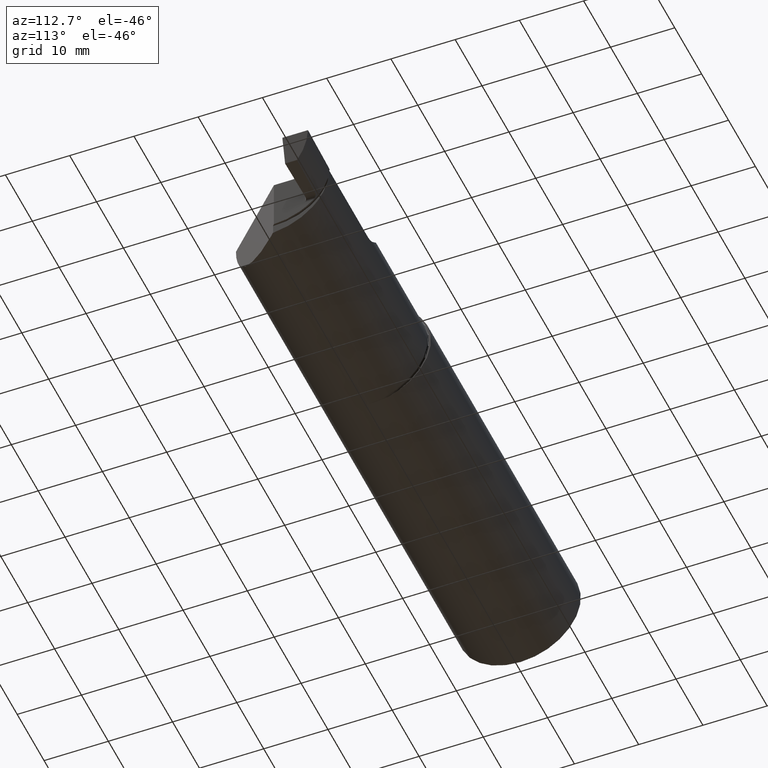
[diagram: clean part render]
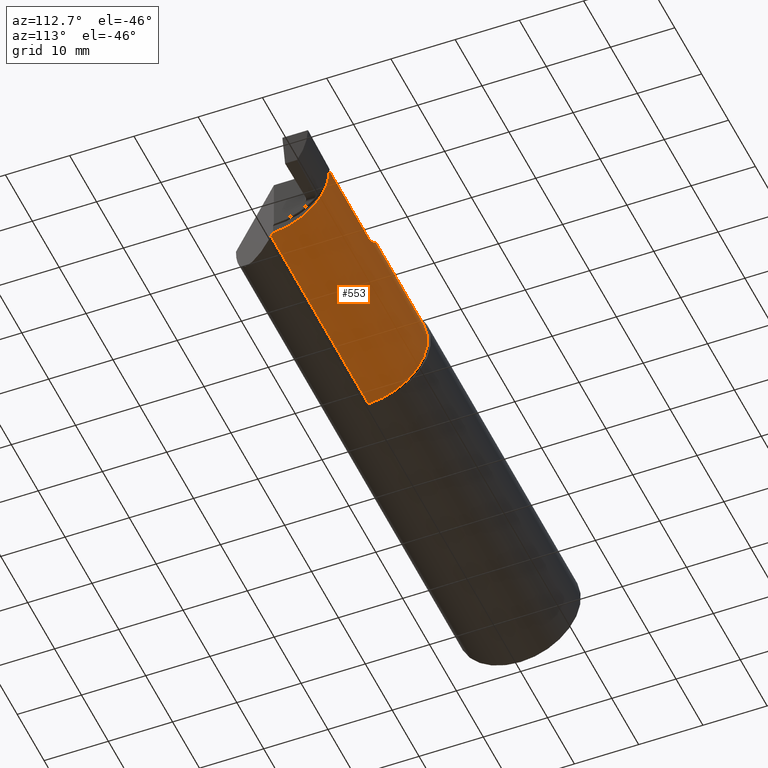
[diagram: same view with one face highlighted and labeled with its STEP entity id]
A machine part, auxiliary view. The second image highlights one B-rep face of the part: STEP entity #553.
In plain terms, the highlighted cylindrical surface (partial cylindrical patch) has radius 9.525 mm, axis along (-1, -0, -0).
Its self-contained STEP definition (entity closure, byte-faithful):
#20 = EDGE_CURVE ( 'NONE', #408, #60, #1020, .T. ) ;
#26 = CARTESIAN_POINT ( 'NONE',  ( 2.689999999999997282, 0.08836216410823956313, 0.3598500000000000587 ) ) ;
#45 = CARTESIAN_POINT ( 'NONE',  ( 3.069098199700243779, 0.3578309987608568332, 0.004030619021138301221 ) ) ;
#51 = CARTESIAN_POINT ( 'NONE',  ( 3.013238347648311333, 0.3560577416285020114, 0.03661165235168205301 ) ) ;
#54 = DIRECTION ( 'NONE',  ( 1.000000000000000000, 0.000000000000000000, 0.000000000000000000 ) ) ;
#60 = VERTEX_POINT ( 'NONE', #568 ) ;
#67 = DIRECTION ( 'NONE',  ( -1.000000000000000000, -0.000000000000000000, -0.000000000000000000 ) ) ;
#73 = EDGE_CURVE ( 'NONE', #485, #902, #1024, .T. ) ;
#85 = VERTEX_POINT ( 'NONE', #395 ) ;
#87 = CARTESIAN_POINT ( 'NONE',  ( 3.644553700960193598, -0.005296299039805382053, -0.3748125821213424969 ) ) ;
#95 = EDGE_CURVE ( 'NONE', #485, #60, #1035, .T. ) ;
#103 = EDGE_CURVE ( 'NONE', #144, #85, #871, .T. ) ;
#105 = CARTESIAN_POINT ( 'NONE',  ( 2.217999999999999527, -0.005296299040551805809, -0.3748125821213491582 ) ) ;
#111 = CARTESIAN_POINT ( 'NONE',  ( 3.661999999999995925, 0.3493624075411467800, -0.07932904144530507351 ) ) ;
#122 = CARTESIAN_POINT ( 'NONE',  ( 3.660842389325723367, 0.3236224128022969770, -0.1662253948398291215 ) ) ;
#124 =( BOUNDED_CURVE ( )  B_SPLINE_CURVE ( 3, ( #980, #122, #259, #592 ),
 .UNSPECIFIED., .F., .F. ) 
 B_SPLINE_CURVE_WITH_KNOTS ( ( 4, 4 ),
 ( 0.3056808995292194520, 0.7497246326158212293 ),
 .UNSPECIFIED. ) 
 CURVE ( )  GEOMETRIC_REPRESENTATION_ITEM ( )  RATIONAL_B_SPLINE_CURVE ( ( 1.000000000000000000, 0.9836361491673499824, 0.9836361491673499824, 1.000000000000000000 ) ) 
 REPRESENTATION_ITEM ( '' )  );
#137 = CARTESIAN_POINT ( 'NONE',  ( 2.209999999999999520, 0.3578492383597801640, 0.000000000000000000 ) ) ;
#144 = VERTEX_POINT ( 'NONE', #111 ) ;
#166 = ORIENTED_EDGE ( 'NONE', *, *, #173, .T. ) ;
#167 = CIRCLE ( 'NONE', #724, 0.3749999999999996669 ) ;
#173 = EDGE_CURVE ( 'NONE', #85, #341, #124, .T. ) ;
#177 = CARTESIAN_POINT ( 'NONE',  ( 3.661374699452105030, 0.3481424780645392958, -0.08496531550717491277 ) ) ;
#186 = VECTOR ( 'NONE', #54, 39.37007874015748143 ) ;
#198 = DIRECTION ( 'NONE',  ( 0.000000000000000000, 0.000000000000000000, 1.000000000000000000 ) ) ;
#205 = CARTESIAN_POINT ( 'NONE',  ( 3.661999999999999922, -0.01715076164021963126, 0.000000000000000000 ) ) ;
#242 = CARTESIAN_POINT ( 'NONE',  ( 3.660518016757759785, 0.3422057047749796910, -0.1073377072877745170 ) ) ;
#245 = ORIENTED_EDGE ( 'NONE', *, *, #95, .T. ) ;
#246 = CARTESIAN_POINT ( 'NONE',  ( 3.013238347648311333, 0.3560577416285020114, 0.03661165235168205301 ) ) ;
#253 = EDGE_CURVE ( 'NONE', #427, #144, #560, .T. ) ;
#254 = DIRECTION ( 'NONE',  ( -1.000000000000000000, -0.000000000000000000, -0.000000000000000000 ) ) ;
#259 = CARTESIAN_POINT ( 'NONE',  ( 3.661334305854107907, 0.2954405337655734987, -0.2145784713008627997 ) ) ;
#277 = CARTESIAN_POINT ( 'NONE',  ( 3.085114159819533963, 0.3578517493328192689, 0.0008266118192357160398 ) ) ;
#304 = CARTESIAN_POINT ( 'NONE',  ( 3.660548399360922467, 0.3404650866055265457, -0.1128534673081659917 ) ) ;
#309 = CARTESIAN_POINT ( 'NONE',  ( 3.661999999999995925, 0.3493624075411467800, -0.07932904144530507351 ) ) ;
#320 = ORIENTED_EDGE ( 'NONE', *, *, #73, .F. ) ;
#327 = CARTESIAN_POINT ( 'NONE',  ( 3.013238347648311333, 0.3560577416285020114, 0.03661165235168205301 ) ) ;
#334 = AXIS2_PLACEMENT_3D ( 'NONE', #747, #254, #650 ) ;
#337 = VECTOR ( 'NONE', #952, 39.37007874015748143 ) ;
#341 = VERTEX_POINT ( 'NONE', #550 ) ;
#353 = ORIENTED_EDGE ( 'NONE', *, *, #507, .T. ) ;
#369 = CARTESIAN_POINT ( 'NONE',  ( 3.061312743841987594, 0.3578077948251029428, 0.006396521326471136214 ) ) ;
#378 = EDGE_CURVE ( 'NONE', #949, #902, #788, .T. ) ;
#384 = AXIS2_PLACEMENT_3D ( 'NONE', #773, #680, #929 ) ;
#389 = CARTESIAN_POINT ( 'NONE',  ( 3.661040727835074282, 0.3467859373946659551, -0.09060102688412932648 ) ) ;
#395 = CARTESIAN_POINT ( 'NONE',  ( 3.660548399360922467, 0.3404650866055265457, -0.1128534673081659917 ) ) ;
#403 = EDGE_LOOP ( 'NONE', ( #245, #519, #725, #630, #647, #734, #166, #353, #711, #889, #320 ) ) ;
#408 = VERTEX_POINT ( 'NONE', #246 ) ;
#427 = VERTEX_POINT ( 'NONE', #575 ) ;
#434 = CARTESIAN_POINT ( 'NONE',  ( 3.025361822505243659, 0.3569999263830916925, 0.02562779885089322071 ) ) ;
#465 = CARTESIAN_POINT ( 'NONE',  ( 3.661999999999999922, 0.01214999999999992822, -0.3738535346459931907 ) ) ;
#473 = FACE_OUTER_BOUND ( 'NONE', #403, .T. ) ;
#485 = VERTEX_POINT ( 'NONE', #679 ) ;
#507 = EDGE_CURVE ( 'NONE', #341, #574, #167, .T. ) ;
#517 = DIRECTION ( 'NONE',  ( -1.000000000000000000, -0.000000000000000000, -0.000000000000000000 ) ) ;
#519 = ORIENTED_EDGE ( 'NONE', *, *, #20, .F. ) ;
#533 = EDGE_CURVE ( 'NONE', #555, #427, #948, .T. ) ;
#550 = CARTESIAN_POINT ( 'NONE',  ( 3.661999999999999922, 0.2573029416895778465, -0.2555389690997428853 ) ) ;
#553 = ADVANCED_FACE ( 'NONE', ( #473 ), #715, .T. ) ;
#555 = VERTEX_POINT ( 'NONE', #887 ) ;
#560 = CIRCLE ( 'NONE', #696, 0.3749999999999996669 ) ;
#568 = CARTESIAN_POINT ( 'NONE',  ( 2.689999999999997282, 0.08836216410823956313, 0.3598500000000000587 ) ) ;
#574 = VERTEX_POINT ( 'NONE', #894 ) ;
#575 = CARTESIAN_POINT ( 'NONE',  ( 3.661999999999999922, 0.3578492383597800530, 0.000000000000000000 ) ) ;
#585 = CARTESIAN_POINT ( 'NONE',  ( 2.856066336462941724, 0.3406392102109843112, 0.1937836635370545346 ) ) ;
#592 = CARTESIAN_POINT ( 'NONE',  ( 3.661999999999999922, 0.2573029416895778465, -0.2555389690997428853 ) ) ;
#603 = CARTESIAN_POINT ( 'NONE',  ( 3.093374821991286439, 0.3578492383597802196, -5.002163074336419804E-18 ) ) ;
#630 = ORIENTED_EDGE ( 'NONE', *, *, #533, .T. ) ;
#647 = ORIENTED_EDGE ( 'NONE', *, *, #253, .T. ) ;
#650 = DIRECTION ( 'NONE',  ( 0.000000000000000000, 0.000000000000000000, 1.000000000000000000 ) ) ;
#652 = CARTESIAN_POINT ( 'NONE',  ( 2.734435425775913586, 0.2399084116607304029, 0.3154145742240833661 ) ) ;
#679 = CARTESIAN_POINT ( 'NONE',  ( 2.217999999999999527, 0.08836216410824010437, 0.3598500000000000587 ) ) ;
#680 = DIRECTION ( 'NONE',  ( -1.000000000000000000, -0.000000000000000000, -0.000000000000000000 ) ) ;
#681 = CARTESIAN_POINT ( 'NONE',  ( 3.038883473395751267, 0.3575098277672587033, 0.01658204351399127086 ) ) ;
#684 = DIRECTION ( 'NONE',  ( -1.000000000000000000, -0.000000000000000000, -0.000000000000000000 ) ) ;
#690 = CARTESIAN_POINT ( 'NONE',  ( 3.019060571484214250, 0.3566289001983811158, 0.03078942851578016573 ) ) ;
#696 = AXIS2_PLACEMENT_3D ( 'NONE', #205, #517, #831 ) ;
#700 =( BOUNDED_CURVE ( )  B_SPLINE_CURVE ( 3, ( #465, #799, #719, #87 ),
 .UNSPECIFIED., .F., .T. ) 
 B_SPLINE_CURVE_WITH_KNOTS ( ( 4, 4 ),
 ( 4.634173892296693964, 4.680771812721409297 ),
 .UNSPECIFIED. ) 
 CURVE ( )  GEOMETRIC_REPRESENTATION_ITEM ( )  RATIONAL_B_SPLINE_CURVE ( ( 1.000000000000000000, 0.9998190610029968894, 0.9998190610029968894, 1.000000000000000000 ) ) 
 REPRESENTATION_ITEM ( '' )  );
#711 = ORIENTED_EDGE ( 'NONE', *, *, #744, .T. ) ;
#714 = CARTESIAN_POINT ( 'NONE',  ( 3.660602707718964677, 0.3438180439414914580, -0.1017840280878117704 ) ) ;
#715 = CYLINDRICAL_SURFACE ( 'NONE', #334, 0.3749999999999998335 ) ;
#719 = CARTESIAN_POINT ( 'NONE',  ( 3.650376056702548944, 0.0005260567025488105831, -0.3746284343587198418 ) ) ;
#724 = AXIS2_PLACEMENT_3D ( 'NONE', #916, #684, #198 ) ;
#725 = ORIENTED_EDGE ( 'NONE', *, *, #1009, .T. ) ;
#734 = ORIENTED_EDGE ( 'NONE', *, *, #103, .T. ) ;
#744 = EDGE_CURVE ( 'NONE', #574, #949, #700, .T. ) ;
#747 = CARTESIAN_POINT ( 'NONE',  ( 2.209999999999999520, -0.01715076164021963126, 0.000000000000000000 ) ) ;
#773 = CARTESIAN_POINT ( 'NONE',  ( 2.217999999999999527, -0.01715076164021963126, 0.000000000000000000 ) ) ;
#778 = B_SPLINE_CURVE_WITH_KNOTS ( 'NONE', 3,
 ( #51, #690, #434, #681, #996, #369, #45, #277, #603, #1008 ),
 .UNSPECIFIED., .F., .F.,
 ( 4, 2, 2, 2, 4 ),
 ( 0.000000000000000000, 0.0006198654333269901099, 0.001239730866653980220, 0.001859596299980970438, 0.002479461733307960439 ),
 .UNSPECIFIED. ) ;
#788 = LINE ( 'NONE', #792, #896 ) ;
#792 = CARTESIAN_POINT ( 'NONE',  ( 2.939999999999999947, -0.005296299040555572761, -0.3748125821213490472 ) ) ;
#799 = CARTESIAN_POINT ( 'NONE',  ( 3.656192542144860003, 0.006342542144859552797, -0.3743086940134451313 ) ) ;
#812 = CARTESIAN_POINT ( 'NONE',  ( 2.209999999999999520, 0.08836216410823945211, 0.3598500000000000587 ) ) ;
#831 = DIRECTION ( 'NONE',  ( 0.000000000000000000, 0.000000000000000000, 1.000000000000000000 ) ) ;
#871 = B_SPLINE_CURVE_WITH_KNOTS ( 'NONE', 3,
 ( #309, #177, #389, #714, #242, #304 ),
 .UNSPECIFIED., .F., .F.,
 ( 4, 2, 4 ),
 ( 1.850330286780190458E-06, 0.0004436701034795959443, 0.0008854898766724116858 ),
 .UNSPECIFIED. ) ;
#887 = CARTESIAN_POINT ( 'NONE',  ( 3.101626695296630487, 0.3578492383597801640, 0.000000000000000000 ) ) ;
#889 = ORIENTED_EDGE ( 'NONE', *, *, #378, .T. ) ;
#894 = CARTESIAN_POINT ( 'NONE',  ( 3.661999999999999922, 0.01214999999999992822, -0.3738535346459931907 ) ) ;
#896 = VECTOR ( 'NONE', #67, 39.37007874015748143 ) ;
#902 = VERTEX_POINT ( 'NONE', #105 ) ;
#916 = CARTESIAN_POINT ( 'NONE',  ( 3.661999999999999922, -0.01715076164021963126, 0.000000000000000000 ) ) ;
#917 = CARTESIAN_POINT ( 'NONE',  ( 3.644553700960193598, -0.005296299039805382053, -0.3748125821213424969 ) ) ;
#929 = DIRECTION ( 'NONE',  ( 0.000000000000000000, 0.000000000000000000, 1.000000000000000000 ) ) ;
#948 = LINE ( 'NONE', #137, #186 ) ;
#949 = VERTEX_POINT ( 'NONE', #917 ) ;
#952 = DIRECTION ( 'NONE',  ( 1.000000000000000000, 0.000000000000000000, 0.000000000000000000 ) ) ;
#980 = CARTESIAN_POINT ( 'NONE',  ( 3.660548399360922467, 0.3404650866055265457, -0.1128534673081659917 ) ) ;
#996 = CARTESIAN_POINT ( 'NONE',  ( 3.046190358149832189, 0.3576483765745644972, 0.01266651274399054235 ) ) ;
#1008 = CARTESIAN_POINT ( 'NONE',  ( 3.101626695296630487, 0.3578492383597801640, 0.000000000000000000 ) ) ;
#1009 = EDGE_CURVE ( 'NONE', #408, #555, #778, .T. ) ;
#1020 =( BOUNDED_CURVE ( )  B_SPLINE_CURVE ( 3, ( #327, #585, #652, #26 ),
 .UNSPECIFIED., .F., .T. ) 
 B_SPLINE_CURVE_WITH_KNOTS ( ( 4, 4 ),
 ( 4.810175822803776313, 5.997966107572837657 ),
 .UNSPECIFIED. ) 
 CURVE ( )  GEOMETRIC_REPRESENTATION_ITEM ( )  RATIONAL_B_SPLINE_CURVE ( ( 1.000000000000000000, 0.8858448504099136755, 0.8858448504099136755, 1.000000000000000000 ) ) 
 REPRESENTATION_ITEM ( '' )  );
#1024 = CIRCLE ( 'NONE', #384, 0.3750000000000000555 ) ;
#1035 = LINE ( 'NONE', #812, #337 ) ;